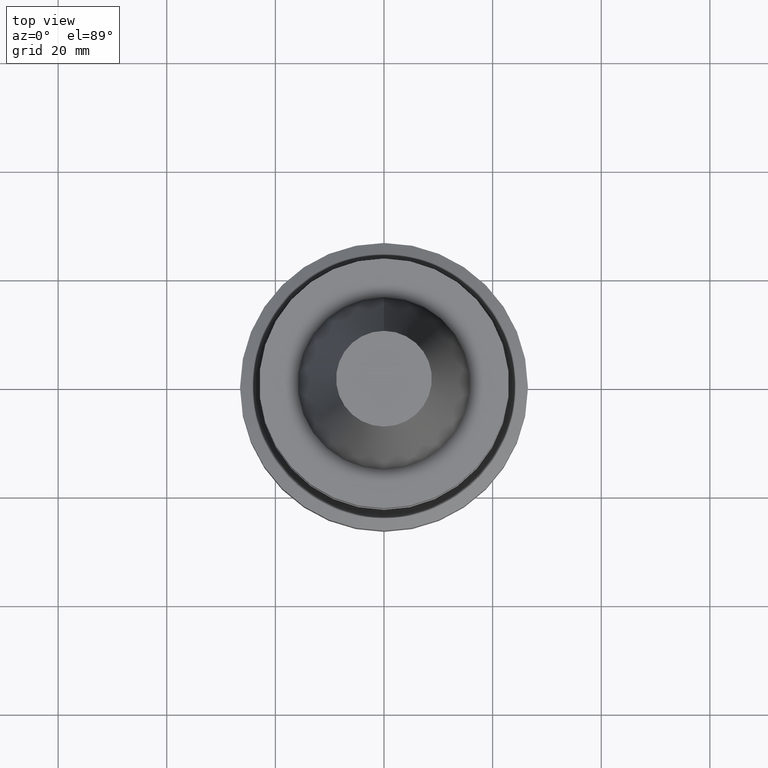
[diagram: clean part render]
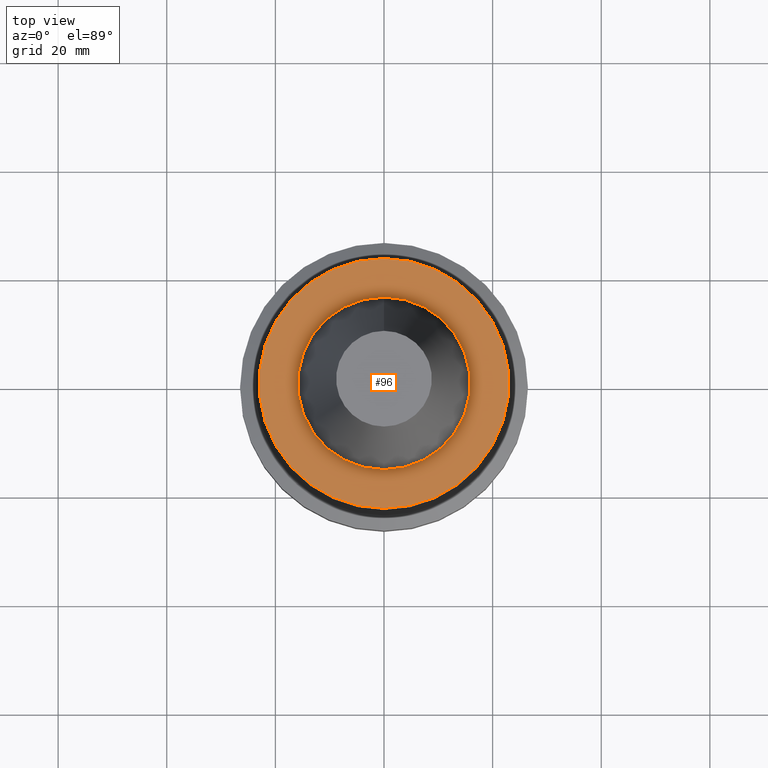
[diagram: same view with one face highlighted and labeled with its STEP entity id]
A machine part, top view. The second image highlights one B-rep face of the part: STEP entity #96.
In plain terms, the highlighted planar face has unit normal (-0, -0, 1).
Its self-contained STEP definition (entity closure, byte-faithful):
#68=EDGE_CURVE('Unnamed[1]',#172,#172,#173,.T.);
#96=ADVANCED_FACE('Unnamed[1]',(#214,#215),#216,.T.);
#119=EDGE_CURVE('Unnamed[1]',#250,#250,#251,.T.);
#172=VERTEX_POINT('',#309);
#173=CIRCLE('',#310,23.0);
#214=FACE_OUTER_BOUND('',#361,.T.);
#215=FACE_BOUND('',#362,.T.);
#216=PLANE('',#363);
#250=VERTEX_POINT('',#407);
#251=CIRCLE('',#408,15.875);
#309=CARTESIAN_POINT('',(6.12323399573674E-017,23.0,-0.999999999999997));
#310=AXIS2_PLACEMENT_3D('',#465,#466,#467);
#361=EDGE_LOOP('',(#509));
#362=EDGE_LOOP('',(#510));
#363=AXIS2_PLACEMENT_3D('',#511,#512,#513);
#407=CARTESIAN_POINT('',(6.12323399573675E-017,15.875,-0.999999999999998));
#408=AXIS2_PLACEMENT_3D('',#549,#550,#551);
#465=CARTESIAN_POINT('',(6.12323399573677E-017,1.22464679914735E-016,-1.0));
#466=DIRECTION('',(6.12323399573677E-017,1.22464679914735E-016,-1.0));
#467=DIRECTION('',(-1.23259516440783E-032,1.0,1.22464679914735E-016));
#509=ORIENTED_EDGE('',*,*,#68,.F.);
#510=ORIENTED_EDGE('',*,*,#119,.T.);
#511=CARTESIAN_POINT('',(6.12323399573674E-017,19.4375,-0.999999999999998));
#512=DIRECTION('',(-6.12323399573677E-017,-1.22464679914735E-016,1.0));
#513=DIRECTION('',(1.23259516440783E-032,-1.0,-1.22464679914735E-016));
#549=CARTESIAN_POINT('',(6.12323399573677E-017,1.22464679914735E-016,-1.0));
#550=DIRECTION('',(6.12323399573677E-017,1.22464679914735E-016,-1.0));
#551=DIRECTION('',(-1.23259516440783E-032,1.0,1.22464679914735E-016));